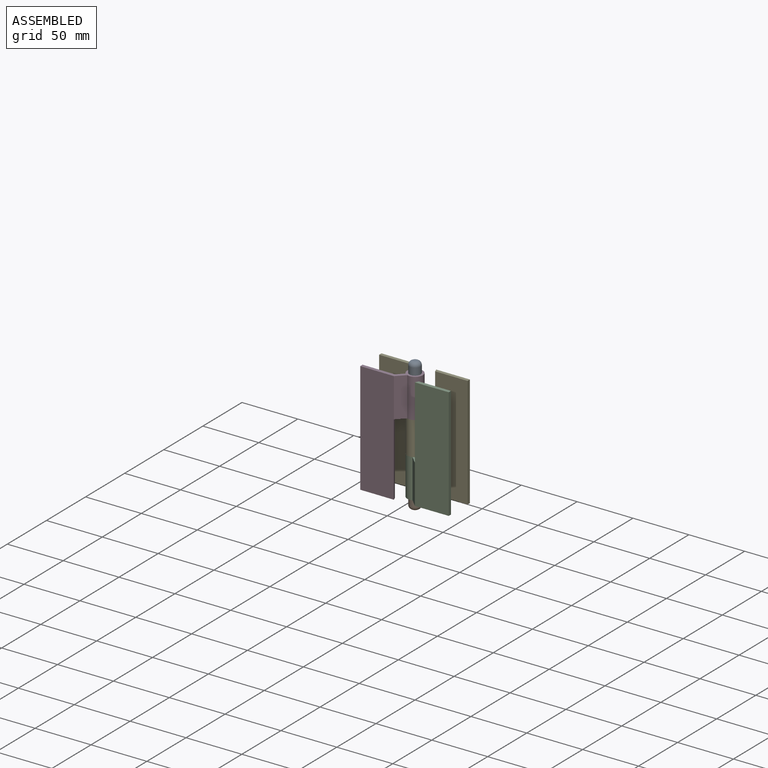
[diagram: assembled view]
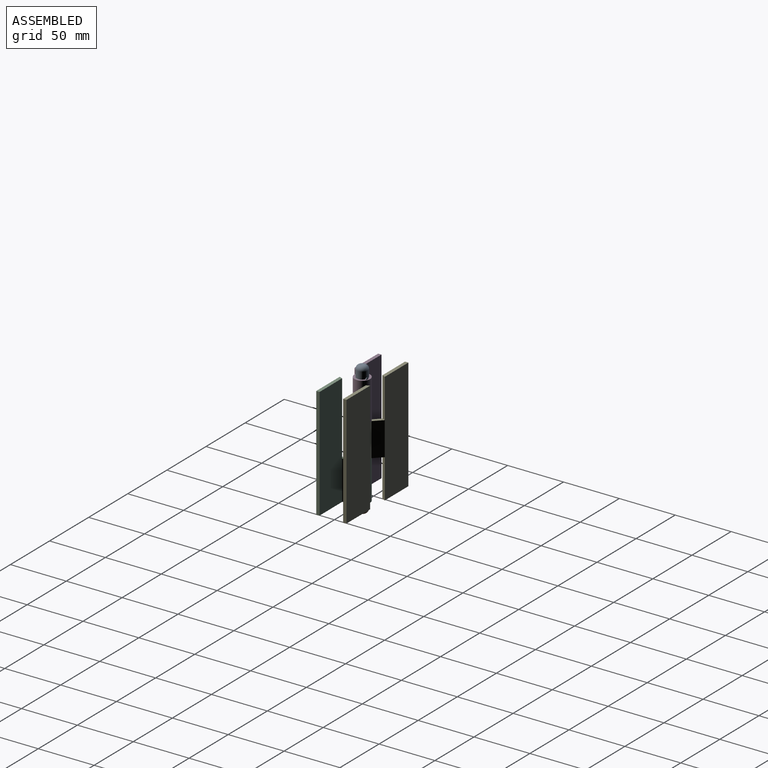
[diagram: assembled view, second angle]
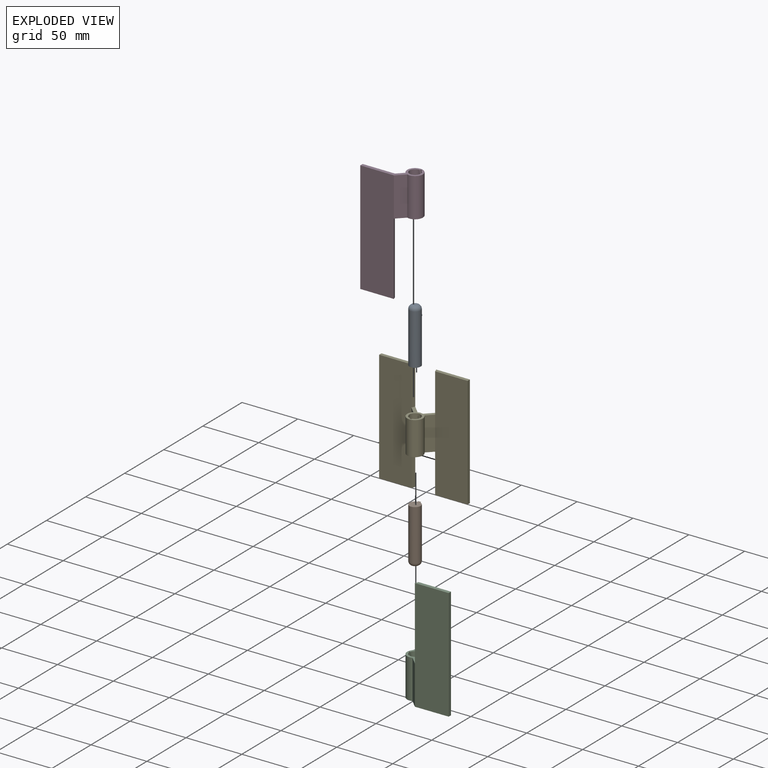
[diagram: exploded view]
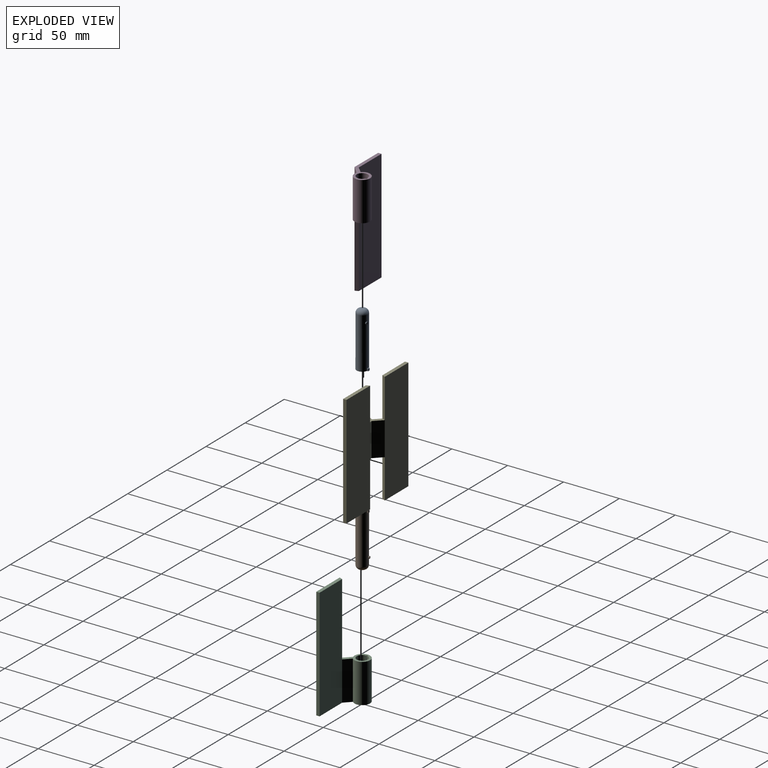
[diagram: exploded view, second angle]
ASSEMBLY  parts=5 mates=4
PART A: 10 faces, bbox 10x10.9x49 mm
  f0: cylinder r=5mm len=45.5mm, axis (0,0,-1), area 1422.1mm2, adj f2,f3,f4,f6,f7,f9
  f1: plane 3x3mm, normal (0,0,1), area 7.1mm2, adj f9
  f2: plane 10.91x10mm, normal (0,0,-1), area 80.4mm2, adj f0,f3,f4,f5
  f3: plane 2x0.98mm, normal (-1,0,0), area 2mm2, adj f0,f2,f5,f6
  f4: plane 2x1.01mm, normal (1,0,0), area 2mm2, adj f0,f2,f5,f6
  f5: plane 2x2mm, normal (-0.02,1,0), area 4mm2, adj f2,f3,f4,f6
  f6: plane 2x1.01mm, normal (0,0,1), area 1.9mm2, adj f0,f3,f4,f5
  f7: cylinder r=1.02mm len=2.25mm, axis (-0.31,-0.95,0), area 6.2mm2, adj f0,f8
  f8: plane 2.03x1.93mm, normal (0.31,0.95,0), area 3.2mm2, adj f7
  f9: torus R=1.5mm, axis (0,0,1), area 128.8mm2, adj f0,f1
PART B: 10 faces, bbox 10x10.9x49 mm
  f0: cylinder r=5mm len=45.5mm, axis (0,0,1), area 1422.1mm2, adj f2,f3,f4,f6,f7,f9
  f1: plane 3x3mm, normal (0,0,-1), area 7.1mm2, adj f9
  f2: plane 10.91x10mm, normal (0,0,1), area 80.4mm2, adj f0,f3,f4,f5
  f3: plane 2x0.98mm, normal (1,0,0), area 2mm2, adj f0,f2,f5,f6
  f4: plane 2x1.01mm, normal (-1,0,0), area 2mm2, adj f0,f2,f5,f6
  f5: plane 2x2mm, normal (0.02,1,0), area 4mm2, adj f2,f3,f4,f6
  f6: plane 2x1.01mm, normal (0,0,-1), area 1.9mm2, adj f0,f3,f4,f5
  f7: cylinder r=1.02mm len=2.25mm, axis (0.31,-0.95,0), area 6.2mm2, adj f0,f8
  f8: plane 2.03x1.93mm, normal (-0.31,0.95,0), area 3.2mm2, adj f7
  f9: torus R=1.5mm, axis (0,0,-1), area 128.8mm2, adj f0,f1
PART C: 17 faces, bbox 46.6x20.6x100.2 mm
  f0: plane 20.61x17.61mm, normal (0,0,1), area 101mm2, adj f1,f6,f8,f9,f10,f12,f13,f14
  f1: plane 35x5.66mm, normal (0.71,0.71,0), area 280mm2, adj f0,f2,f4,f9
  f2: plane 100x28.96mm, normal (0,1,0), area 2895.6mm2, adj f1,f3,f4,f7,f8
  f3: plane 100x3mm, normal (1,0,0), area 300mm2, adj f2,f4,f5,f7
  f4: plane 46.56x20.61mm, normal (0,0,-1), area 188.7mm2, adj f1,f2,f3,f5,f6,f9,f10,f11
  f5: plane 100x30.2mm, normal (0,-1,0), area 3019.8mm2, adj f3,f4,f6,f7,f8
  f6: plane 35x7.01mm, normal (-0.71,-0.71,0), area 347.1mm2, adj f0,f4,f5,f9
  f7: plane 30.2x3mm, normal (0,0,1), area 88.7mm2, adj f2,f3,f5,f8
  f8: plane 65x3mm, normal (-0.92,0.38,0), area 211.1mm2, adj f0,f2,f5,f7
  f9: cylinder r=7mm len=35mm, axis (0,0,-1), area 1430.9mm2, adj f0,f1,f4,f6
  f10: cylinder r=5mm len=35mm, axis (0,0,-1), area 1028.1mm2, adj f0,f4,f11,f12,f13,f15
  f11: bspline ~43.75x8.08mm, area 35.9mm2, adj f4,f10,f12,f14
  f12: plane 1.01x0.99mm, normal (0,0.18,-0.98), area 0.9mm2, adj f0,f10,f11,f14
  f13: bspline ~35x5.96mm, area 35.9mm2, adj f0,f10,f14,f15
  f14: bspline ~44.1x8.69mm, area 71.4mm2, adj f0,f4,f11,f12,f13,f16
  f15: plane 0.97x0.34mm, normal (-0.94,-0.3,-0.18), area 0.2mm2, adj f4,f10,f13,f16
  f16: plane 0.97x0.31mm, normal (0.31,-0.95,0), area 0.1mm2, adj f4,f14,f15
PART D: 17 faces, bbox 46.6x20.6x100.2 mm
  f0: plane 20.61x17.61mm, normal (0,0,-1), area 101mm2, adj f1,f6,f8,f9,f10,f12,f13,f14
  f1: plane 35x5.66mm, normal (-0.71,0.71,0), area 280mm2, adj f0,f2,f4,f9
  f2: plane 100x28.96mm, normal (0,1,0), area 2895.6mm2, adj f1,f3,f4,f7,f8
  f3: plane 100x3mm, normal (-1,0,0), area 300mm2, adj f2,f4,f5,f7
  f4: plane 46.56x20.61mm, normal (0,0,1), area 188.7mm2, adj f1,f2,f3,f5,f6,f9,f10,f11
  f5: plane 100x30.2mm, normal (0,-1,0), area 3019.8mm2, adj f3,f4,f6,f7,f8
  f6: plane 35x7.01mm, normal (0.71,-0.71,0), area 347.1mm2, adj f0,f4,f5,f9
  f7: plane 30.2x3mm, normal (0,0,-1), area 88.7mm2, adj f2,f3,f5,f8
  f8: plane 65x3mm, normal (0.92,0.38,0), area 211.1mm2, adj f0,f2,f5,f7
  f9: cylinder r=7mm len=35mm, axis (0,0,1), area 1430.9mm2, adj f0,f1,f4,f6
  f10: cylinder r=5mm len=35mm, axis (0,0,1), area 1028.1mm2, adj f0,f4,f11,f12,f13,f15
  f11: bspline ~43.75x8.08mm, area 35.9mm2, adj f4,f10,f12,f14
  f12: plane 1.01x0.99mm, normal (0,0.18,0.98), area 0.9mm2, adj f0,f10,f11,f14
  f13: bspline ~35x5.96mm, area 35.9mm2, adj f0,f10,f14,f15
  f14: bspline ~44.1x8.69mm, area 71.4mm2, adj f0,f4,f11,f12,f13,f16
  f15: plane 0.97x0.34mm, normal (0.94,-0.3,0.18), area 0.2mm2, adj f4,f10,f13,f16
  f16: plane 0.97x0.31mm, normal (-0.31,-0.95,0), area 0.1mm2, adj f4,f14,f15
PART E: 31 faces, bbox 79.1x20.6x100 mm
  f0: cylinder r=5mm len=30mm, axis (0,0,1), area 829.7mm2, adj f1,f4,f24,f25,f26,f27,f28,f29
  f1: plane 21.21x20.61mm, normal (0,0,1), area 126.6mm2, adj f0,f2,f3,f5,f8,f11,f14,f17
  f2: cylinder r=7mm len=30mm, axis (0,0,1), area 143.8mm2, adj f1,f4,f5,f14
  f3: cylinder r=7mm len=30mm, axis (0,0,1), area 989.6mm2, adj f1,f4,f8,f17
  f4: plane 21.21x20.61mm, normal (0,0,-1), area 126.6mm2, adj f0,f2,f3,f5,f8,f13,f14,f17
  f5: plane 30x7.01mm, normal (0.71,0.71,0), area 297.5mm2, adj f1,f2,f4,f6
  f6: plane 100x30.2mm, normal (0,1,0), area 3019.8mm2, adj f5,f7,f10,f11,f12,f13
  f7: plane 100x3mm, normal (-1,0,0), area 300mm2, adj f6,f9,f10,f12
  f8: plane 30x5.66mm, normal (-0.71,-0.71,0), area 240mm2, adj f1,f3,f4,f9
  f9: plane 100x28.96mm, normal (0,-1,0), area 2895.6mm2, adj f7,f8,f10,f11,f12,f13
  f10: plane 30.2x3mm, normal (0,0,1), area 88.7mm2, adj f6,f7,f9,f11
  f11: plane 35x3mm, normal (0.92,-0.38,0), area 113.7mm2, adj f1,f6,f9,f10
  f12: plane 30.2x3mm, normal (0,0,-1), area 88.7mm2, adj f6,f7,f9,f13
  f13: plane 35x3mm, normal (0.92,-0.38,0), area 113.7mm2, adj f4,f6,f9,f12
  f14: plane 30x7.01mm, normal (-0.71,0.71,0), area 297.5mm2, adj f1,f2,f4,f15
  f15: plane 100x30.2mm, normal (0,1,0), area 3019.8mm2, adj f14,f16,f19,f20,f21,f22
  f16: plane 100x3mm, normal (1,0,0), area 300mm2, adj f15,f18,f19,f21
  f17: plane 30x5.66mm, normal (0.71,-0.71,0), area 240mm2, adj f1,f3,f4,f18
  f18: plane 100x28.96mm, normal (0,-1,0), area 2895.6mm2, adj f16,f17,f19,f20,f21,f22
  f19: plane 30.2x3mm, normal (0,0,1), area 88.7mm2, adj f15,f16,f18,f20
  f20: plane 35x3mm, normal (-0.92,-0.38,0), area 113.7mm2, adj f1,f15,f18,f19
  f21: plane 30.2x3mm, normal (0,0,-1), area 88.7mm2, adj f15,f16,f18,f22
  f22: plane 35x3mm, normal (-0.92,-0.38,0), area 113.7mm2, adj f4,f15,f18,f21
  f23: plane 28x2mm, normal (0.02,-1,0), area 56mm2, adj f4,f24,f25,f26
  f24: plane 2x1.01mm, normal (0,0,-1), area 1.9mm2, adj f0,f23,f25,f26
  f25: plane 28x0.98mm, normal (1,0,0), area 27.4mm2, adj f0,f4,f23,f24
  f26: plane 28x1.01mm, normal (-1,0,0), area 28.4mm2, adj f0,f4,f23,f24
  f27: plane 2x1.01mm, normal (0,0,1), area 1.9mm2, adj f0,f28,f29,f30
  f28: plane 28x1.01mm, normal (-1,0,0), area 28.4mm2, adj f0,f1,f27,f30
  f29: plane 28x0.98mm, normal (1,0,0), area 27.4mm2, adj f0,f1,f27,f30
  f30: plane 28x2mm, normal (0.02,1,0), area 56mm2, adj f1,f27,f28,f29
PLACE A at identity
PLACE B at identity
PLACE C rot(axis=(0,0,1),0.2deg) t=(0,0,0)mm
PLACE D rot(axis=(0,0,-1),0.2deg) t=(0,0,0)mm
PLACE E at identity fixed
MATE revolute C.f9 <-> E.f2  axis (0,0,1) through (0,0,-15)mm
MATE revolute D.f9 <-> E.f2  axis (0,0,-1) through (0,0,15)mm
MATE slider B.f0 <-> E.f2  axis (0,0,1) through (0,0,-33.75)mm
MATE slider A.f0 <-> E.f2  axis (0,0,-1) through (0,0,11)mm
